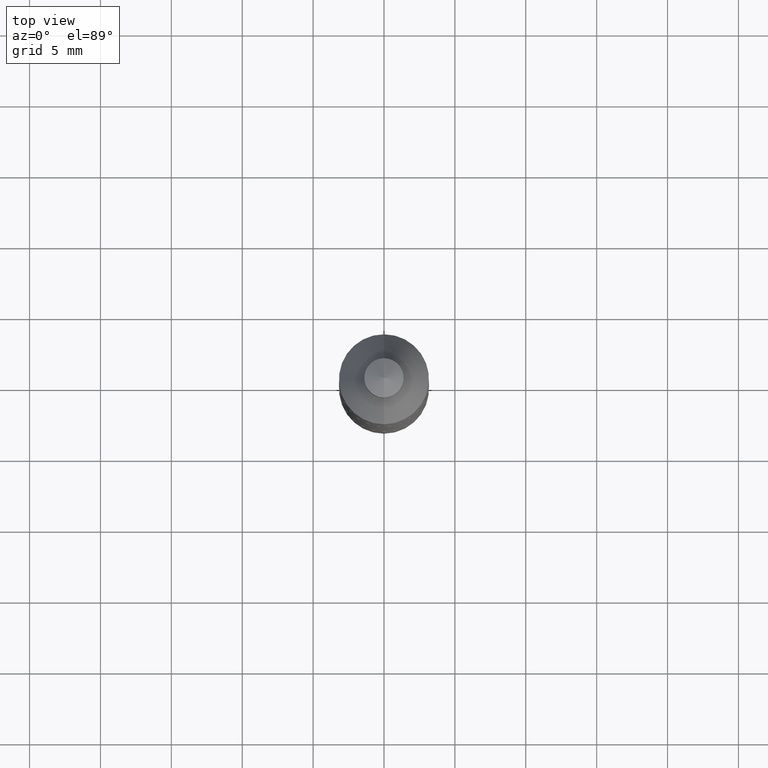
[diagram: clean part render]
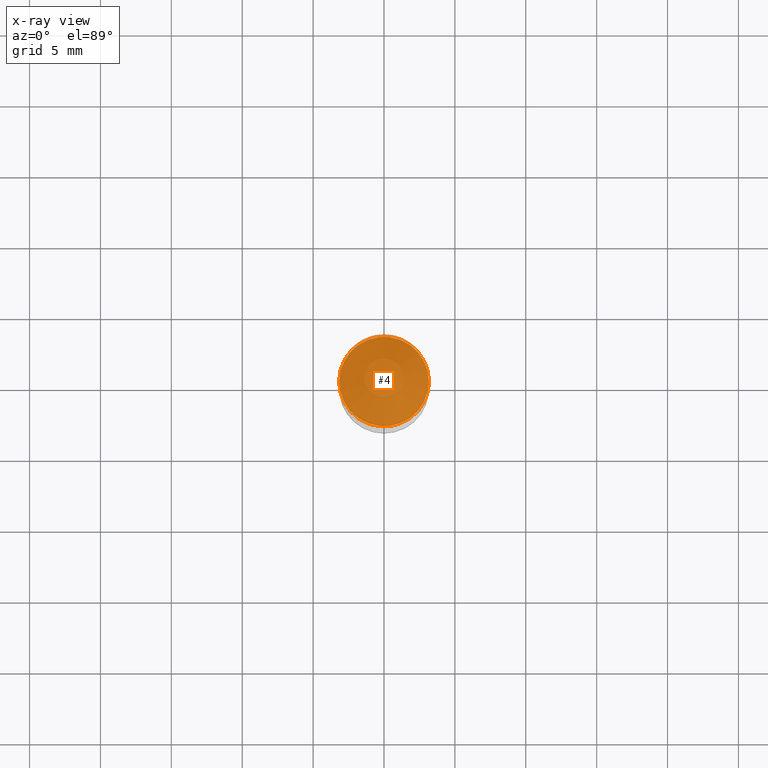
[diagram: x-ray — body ghosted, one internal face saturated and labeled with its STEP entity id]
A machine part, top view, then the same camera in x-ray: the body is ghosted and one INTERNAL B-rep face — a face not visible from any outside direction — is saturated and labeled: STEP entity #4.
In plain terms, the highlighted planar face has unit normal (-0, 0, 1).
Its self-contained STEP definition (entity closure, byte-faithful):
#4 = ADVANCED_FACE ( 'NONE', ( #543 ), #602, .T. ) ;
#28 = DIRECTION ( 'NONE',  ( -2.438088387897960049E-29, 3.491481338843145188E-15, 1.000000000000000000 ) ) ;
#44 = CARTESIAN_POINT ( 'NONE',  ( 0.1245000000000000689, 4.399266486942387195E-16, 0.3749999999999999445 ) ) ;
#109 = AXIS2_PLACEMENT_3D ( 'NONE', #649, #657, #319 ) ;
#134 = ORIENTED_EDGE ( 'NONE', *, *, #430, .T. ) ;
#200 = CARTESIAN_POINT ( 'NONE',  ( -0.1245000000000000689, 2.164279756953467483E-15, 0.3749999999999999445 ) ) ;
#240 = DIRECTION ( 'NONE',  ( -1.000000000000000000, 6.982962677686265922E-15, -4.876176775795935793E-29 ) ) ;
#273 = ORIENTED_EDGE ( 'NONE', *, *, #305, .T. ) ;
#290 = EDGE_LOOP ( 'NONE', ( #134, #273 ) ) ;
#305 = EDGE_CURVE ( 'NONE', #445, #391, #415, .T. ) ;
#319 = DIRECTION ( 'NONE',  ( 1.000000000000000000, -6.982962677686265922E-15, 0.000000000000000000 ) ) ;
#356 = AXIS2_PLACEMENT_3D ( 'NONE', #394, #28, #240 ) ;
#391 = VERTEX_POINT ( 'NONE', #44 ) ;
#394 = CARTESIAN_POINT ( 'NONE',  ( -9.170508023194260837E-30, 1.309305502066179347E-15, 0.3749999999999999445 ) ) ;
#406 = CARTESIAN_POINT ( 'NONE',  ( -9.170508023194260837E-30, 1.309305502066179347E-15, 0.3749999999999999445 ) ) ;
#407 = DIRECTION ( 'NONE',  ( 1.000000000000000000, -6.982962677686265922E-15, 0.000000000000000000 ) ) ;
#415 = CIRCLE ( 'NONE', #109, 0.1245000000000000689 ) ;
#430 = EDGE_CURVE ( 'NONE', #391, #445, #526, .T. ) ;
#445 = VERTEX_POINT ( 'NONE', #200 ) ;
#521 = DIRECTION ( 'NONE',  ( -2.445468806185136597E-29, 3.491481338843145583E-15, 1.000000000000000000 ) ) ;
#526 = CIRCLE ( 'NONE', #547, 0.1245000000000000689 ) ;
#543 = FACE_OUTER_BOUND ( 'NONE', #290, .T. ) ;
#547 = AXIS2_PLACEMENT_3D ( 'NONE', #406, #521, #407 ) ;
#602 = PLANE ( 'NONE',  #356 ) ;
#649 = CARTESIAN_POINT ( 'NONE',  ( -9.170508023194260837E-30, 1.309305502066179347E-15, 0.3749999999999999445 ) ) ;
#657 = DIRECTION ( 'NONE',  ( -2.445468806185136597E-29, 3.491481338843145583E-15, 1.000000000000000000 ) ) ;